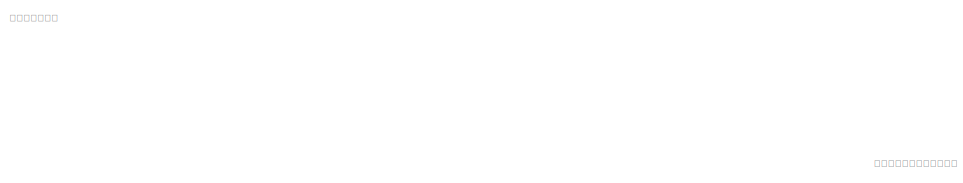
[diagram: root canvas - part 1/6, top center region]
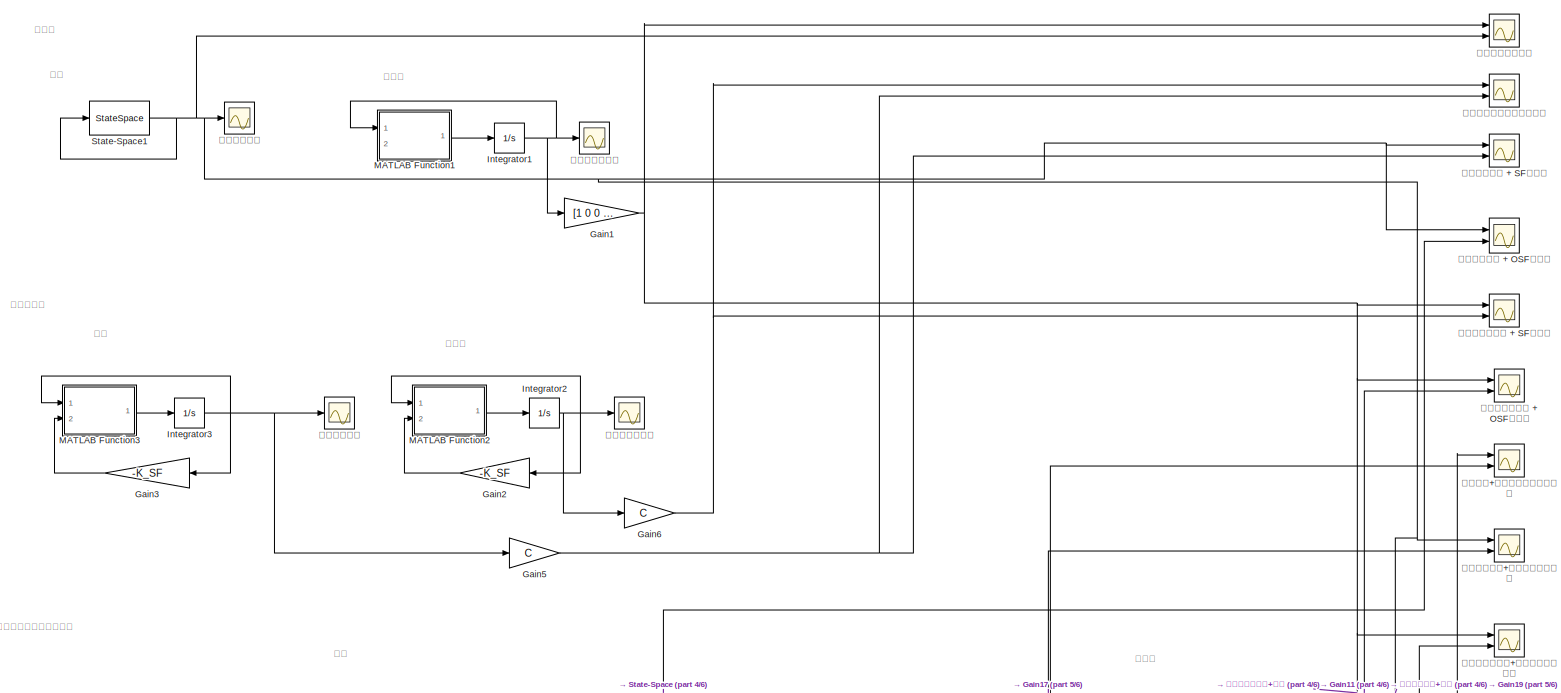
[diagram: root canvas - part 2/6, full width, top band]
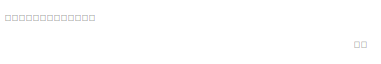
[diagram: root canvas - part 3/6, middle left region]
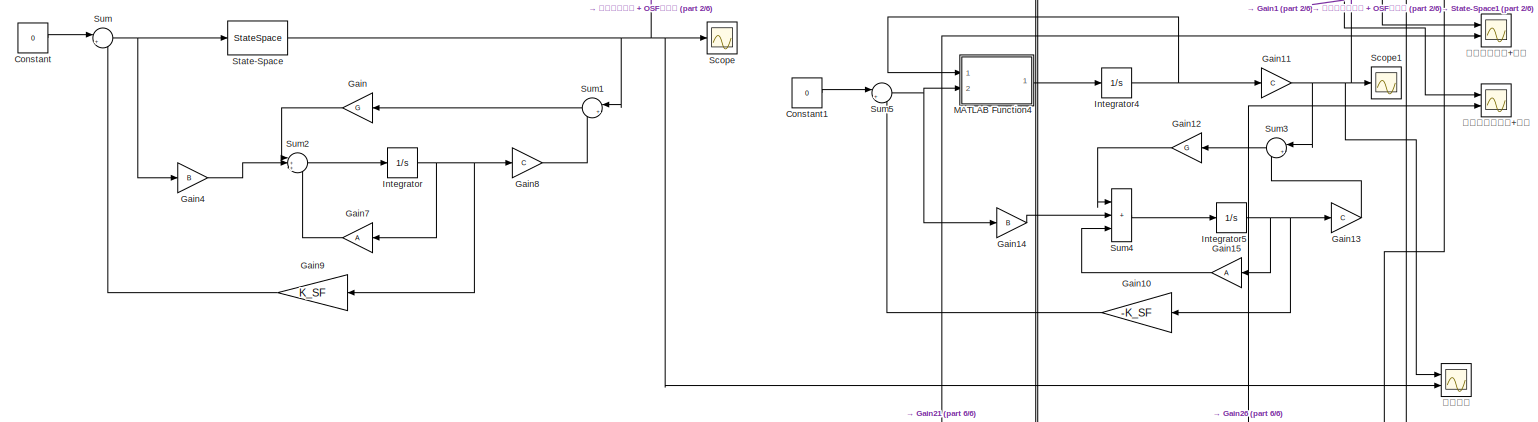
[diagram: root canvas - part 4/6, full width, middle band]
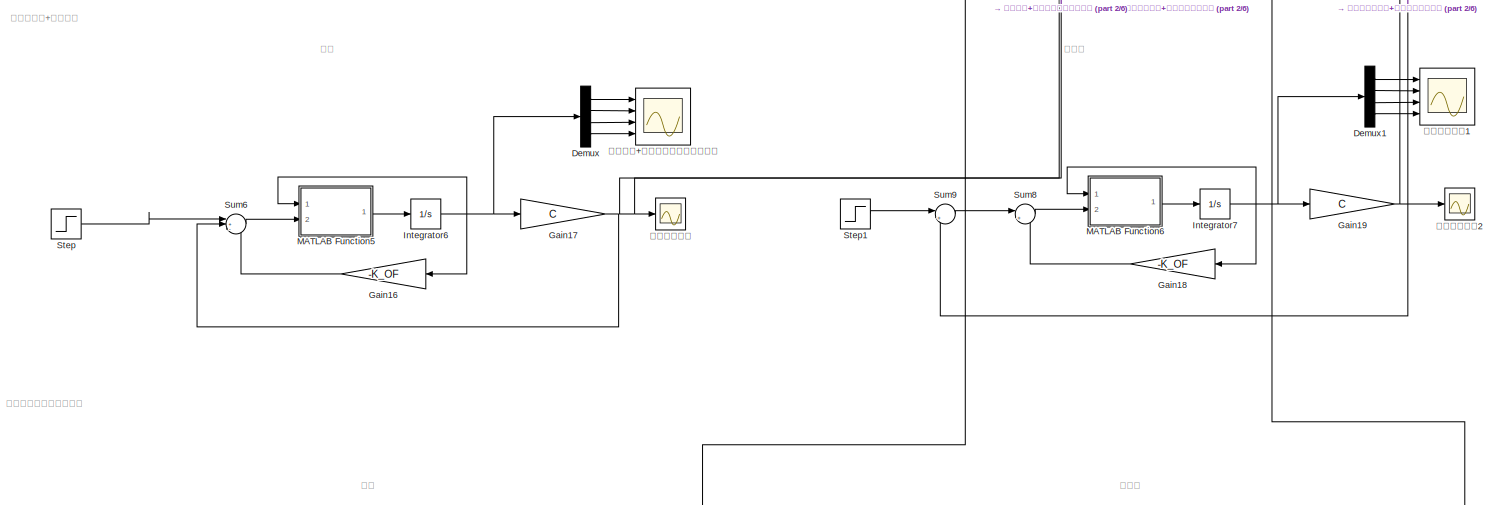
[diagram: root canvas - part 5/6, full width, bottom band]
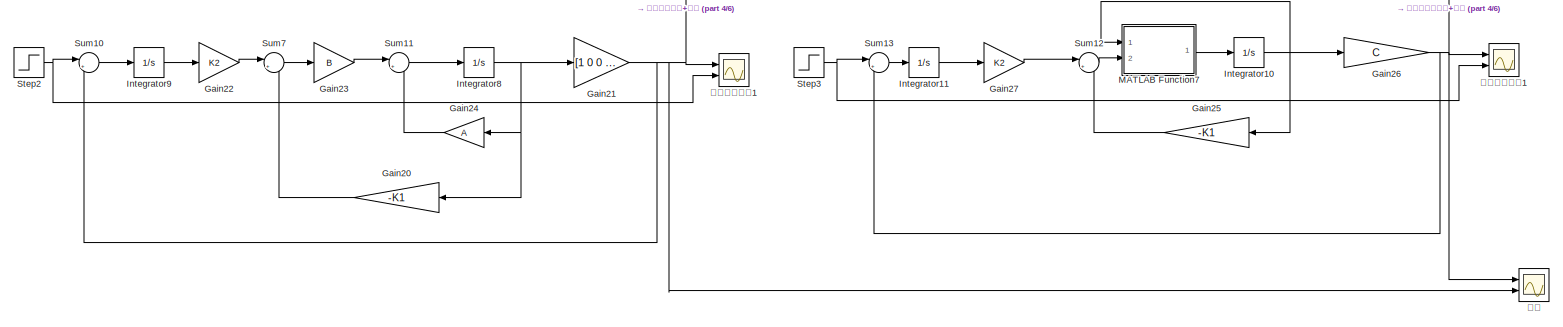
[diagram: root canvas - part 6/6, full width, bottom band]
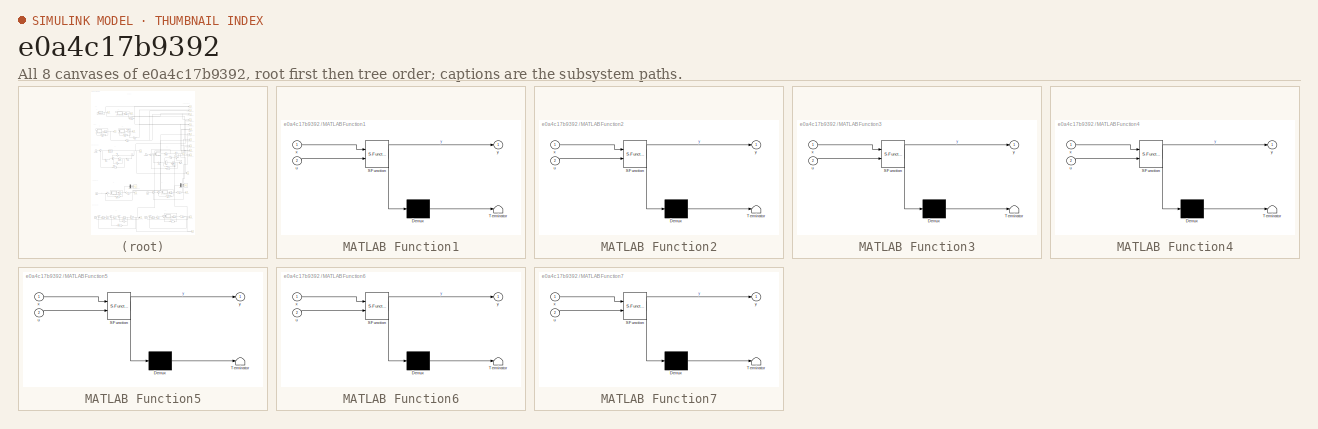
[diagram: thumbnail index - all 8 canvases of the model, root first then tree order]
MODEL slx_e0a4c17b9392
KIND model
CONFIG AbsTol = auto
CONFIG FixedStep = auto
CONFIG MaxStep = auto
CONFIG MinStep = auto
CONFIG RelTol = 1e-3
CONFIG SampleTimeConstraint = Unconstrained
CONFIG Solver = ode45
CONFIG SolverMode = SingleTasking
CONFIG SolverName = ode45
CONFIG StartTime = 0.0
CONFIG StopTime = 50
BLOCK [Constant] Constant
  Value = 0
BLOCK [Constant] Constant1
  Value = 0
BLOCK [Demux] Demux
  Ports = [1, 4]
BLOCK [Demux] Demux1
  Ports = [1, 4]
BLOCK [Gain] Gain
  Gain = G
  Multiplication = Matrix(K*u)
BLOCK [Gain] Gain1
  Gain = [1 0 0 0]
  Multiplication = Matrix(K*u)
BLOCK [Gain] Gain10
  Gain = -K_SF
  Multiplication = Matrix(K*u)
BLOCK [Gain] Gain11
  Gain = C
  Multiplication = Matrix(K*u)
BLOCK [Gain] Gain12
  Gain = G
  Multiplication = Matrix(K*u)
BLOCK [Gain] Gain13
  Gain = C
  Multiplication = Matrix(K*u)
BLOCK [Gain] Gain14
  Gain = B
  Multiplication = Matrix(K*u)
BLOCK [Gain] Gain15
  Gain = A
  Multiplication = Matrix(K*u)
BLOCK [Gain] Gain16
  Gain = -K_OF
  Multiplication = Matrix(K*u)
BLOCK [Gain] Gain17
  Gain = C
  Multiplication = Matrix(K*u)
BLOCK [Gain] Gain18
  Gain = -K_OF
  Multiplication = Matrix(K*u)
BLOCK [Gain] Gain19
  Gain = C
  Multiplication = Matrix(K*u)
BLOCK [Gain] Gain2
  Gain = -K_SF
  Multiplication = Matrix(K*u)
BLOCK [Gain] Gain20
  Gain = -K1
  Multiplication = Matrix(K*u)
BLOCK [Gain] Gain21
  Gain = [1 0 0 0]
  Multiplication = Matrix(K*u)
BLOCK [Gain] Gain22
  Gain = K2
  Multiplication = Matrix(K*u)
BLOCK [Gain] Gain23
  Gain = B
  Multiplication = Matrix(K*u)
BLOCK [Gain] Gain24
  Gain = A
  Multiplication = Matrix(K*u)
BLOCK [Gain] Gain25
  Gain = -K1
  Multiplication = Matrix(K*u)
BLOCK [Gain] Gain26
  Gain = C
  Multiplication = Matrix(K*u)
BLOCK [Gain] Gain27
  Gain = K2
  Multiplication = Matrix(K*u)
BLOCK [Gain] Gain3
  Gain = -K_SF
  Multiplication = Matrix(K*u)
BLOCK [Gain] Gain4
  Gain = B
  Multiplication = Matrix(K*u)
BLOCK [Gain] Gain5
  Gain = C
  Multiplication = Matrix(K*u)
BLOCK [Gain] Gain6
  Gain = C
  Multiplication = Matrix(K*u)
BLOCK [Gain] Gain7
  Gain = A
  Multiplication = Matrix(K*u)
BLOCK [Gain] Gain8
  Gain = C
  Multiplication = Matrix(K*u)
BLOCK [Gain] Gain9
  Gain = K_SF
  Multiplication = Matrix(K*u)
BLOCK [Integrator] Integrator
  InitialCondition = [0;0;0.1;0]
  Ports = [1, 1]
BLOCK [Integrator] Integrator1
  InitialCondition = [1,1,1,1]
  Ports = [1, 1]
BLOCK [Integrator] Integrator10
  InitialCondition = [0.1 0.1 0.1 0.1]
  Ports = [1, 1]
BLOCK [Integrator] Integrator11
  Ports = [1, 1]
BLOCK [Integrator] Integrator2
  InitialCondition = [0,0,0.3,0]
  Ports = [1, 1]
BLOCK [Integrator] Integrator3
  InitialCondition = [0;0;0.1;0]
  Ports = [1, 1]
BLOCK [Integrator] Integrator4
  InitialCondition = [0 0 0.1 0]
  Ports = [1, 1]
BLOCK [Integrator] Integrator5
  InitialCondition = [0 0 0.1 0]
  Ports = [1, 1]
BLOCK [Integrator] Integrator6
  InitialCondition = [0.1;0.1;0.1;0.1]
  Ports = [1, 1]
BLOCK [Integrator] Integrator7
  InitialCondition = [0 0 0.1 0]
  Ports = [1, 1]
BLOCK [Integrator] Integrator8
  Ports = [1, 1]
BLOCK [Integrator] Integrator9
  Ports = [1, 1]
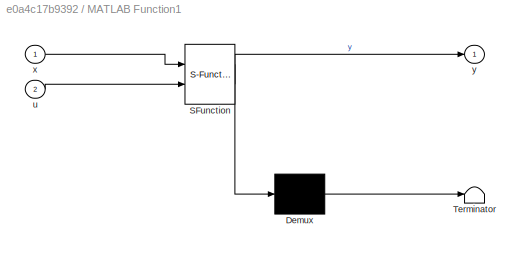
BLOCK [SubSystem] MATLAB Function1
  ErrorFcn = Stateflow.Translate.translate
  PermitHierarchicalResolution = ParametersOnly
  Ports = [2, 1]
  RequestExecContextInheritance = off
  SFBlockType = MATLAB Function
  TreatAsAtomicUnit = on
BLOCK [Demux] MATLAB Function1/ Demux 
  Outputs = 1
  Ports = [1, 1]
BLOCK [S-Function] MATLAB Function1/ SFunction 
  EnableBusSupport = on
  FunctionName = sf_sfun
  PortCounts = [2 2]
  Ports = [2, 2]
  SFunctionDeploymentMode = off
  Tag = Stateflow S-Function test1 1
BLOCK [Terminator] MATLAB Function1/ Terminator 
BLOCK [Inport] MATLAB Function1/u
  Port = 2
BLOCK [Inport] MATLAB Function1/x
BLOCK [Outport] MATLAB Function1/y
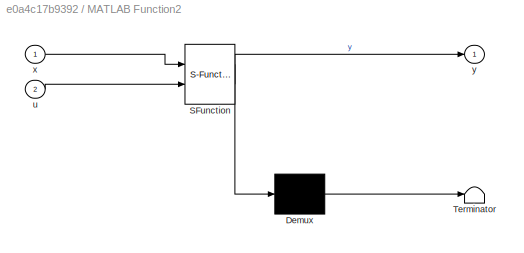
BLOCK [SubSystem] MATLAB Function2
  ErrorFcn = Stateflow.Translate.translate
  PermitHierarchicalResolution = ParametersOnly
  Ports = [2, 1]
  RequestExecContextInheritance = off
  SFBlockType = MATLAB Function
  TreatAsAtomicUnit = on
BLOCK [Demux] MATLAB Function2/ Demux 
  Outputs = 1
  Ports = [1, 1]
BLOCK [S-Function] MATLAB Function2/ SFunction 
  EnableBusSupport = on
  FunctionName = sf_sfun
  PortCounts = [2 2]
  Ports = [2, 2]
  SFunctionDeploymentMode = off
  Tag = Stateflow S-Function test1 2
BLOCK [Terminator] MATLAB Function2/ Terminator 
BLOCK [Inport] MATLAB Function2/u
  Port = 2
BLOCK [Inport] MATLAB Function2/x
BLOCK [Outport] MATLAB Function2/y
BLOCK [SubSystem] MATLAB Function3
  ErrorFcn = Stateflow.Translate.translate
  PermitHierarchicalResolution = ParametersOnly
  Ports = [2, 1]
  RequestExecContextInheritance = off
  SFBlockType = MATLAB Function
  TreatAsAtomicUnit = on
BLOCK [Demux] MATLAB Function3/ Demux 
  Outputs = 1
  Ports = [1, 1]
BLOCK [S-Function] MATLAB Function3/ SFunction 
  EnableBusSupport = on
  FunctionName = sf_sfun
  PortCounts = [2 2]
  Ports = [2, 2]
  SFunctionDeploymentMode = off
  Tag = Stateflow S-Function test1 3
BLOCK [Terminator] MATLAB Function3/ Terminator 
BLOCK [Inport] MATLAB Function3/u
  Port = 2
BLOCK [Inport] MATLAB Function3/x
BLOCK [Outport] MATLAB Function3/y
BLOCK [SubSystem] MATLAB Function4
  ErrorFcn = Stateflow.Translate.translate
  PermitHierarchicalResolution = ParametersOnly
  Ports = [2, 1]
  RequestExecContextInheritance = off
  SFBlockType = MATLAB Function
  TreatAsAtomicUnit = on
BLOCK [Demux] MATLAB Function4/ Demux 
  Outputs = 1
  Ports = [1, 1]
BLOCK [S-Function] MATLAB Function4/ SFunction 
  EnableBusSupport = on
  FunctionName = sf_sfun
  PortCounts = [2 2]
  Ports = [2, 2]
  SFunctionDeploymentMode = off
  Tag = Stateflow S-Function test1 4
BLOCK [Terminator] MATLAB Function4/ Terminator 
BLOCK [Inport] MATLAB Function4/u
  Port = 2
BLOCK [Inport] MATLAB Function4/x
BLOCK [Outport] MATLAB Function4/y
BLOCK [SubSystem] MATLAB Function5
  ErrorFcn = Stateflow.Translate.translate
  PermitHierarchicalResolution = ParametersOnly
  Ports = [2, 1]
  RequestExecContextInheritance = off
  SFBlockType = MATLAB Function
  TreatAsAtomicUnit = on
BLOCK [Demux] MATLAB Function5/ Demux 
  Outputs = 1
  Ports = [1, 1]
BLOCK [S-Function] MATLAB Function5/ SFunction 
  EnableBusSupport = on
  FunctionName = sf_sfun
  PortCounts = [2 2]
  Ports = [2, 2]
  SFunctionDeploymentMode = off
  Tag = Stateflow S-Function test1 5
BLOCK [Terminator] MATLAB Function5/ Terminator 
BLOCK [Inport] MATLAB Function5/u
  Port = 2
BLOCK [Inport] MATLAB Function5/x
BLOCK [Outport] MATLAB Function5/y
BLOCK [SubSystem] MATLAB Function6
  ErrorFcn = Stateflow.Translate.translate
  PermitHierarchicalResolution = ParametersOnly
  Ports = [2, 1]
  RequestExecContextInheritance = off
  SFBlockType = MATLAB Function
  TreatAsAtomicUnit = on
BLOCK [Demux] MATLAB Function6/ Demux 
  Outputs = 1
  Ports = [1, 1]
BLOCK [S-Function] MATLAB Function6/ SFunction 
  EnableBusSupport = on
  FunctionName = sf_sfun
  PortCounts = [2 2]
  Ports = [2, 2]
  SFunctionDeploymentMode = off
  Tag = Stateflow S-Function test1 6
BLOCK [Terminator] MATLAB Function6/ Terminator 
BLOCK [Inport] MATLAB Function6/u
  Port = 2
BLOCK [Inport] MATLAB Function6/x
BLOCK [Outport] MATLAB Function6/y
BLOCK [SubSystem] MATLAB Function7
  ErrorFcn = Stateflow.Translate.translate
  PermitHierarchicalResolution = ParametersOnly
  Ports = [2, 1]
  RequestExecContextInheritance = off
  SFBlockType = MATLAB Function
  TreatAsAtomicUnit = on
BLOCK [Demux] MATLAB Function7/ Demux 
  Outputs = 1
  Ports = [1, 1]
BLOCK [S-Function] MATLAB Function7/ SFunction 
  EnableBusSupport = on
  FunctionName = sf_sfun
  PortCounts = [2 2]
  Ports = [2, 2]
  SFunctionDeploymentMode = off
  Tag = Stateflow S-Function test1 7
BLOCK [Terminator] MATLAB Function7/ Terminator 
BLOCK [Inport] MATLAB Function7/u
  Port = 2
BLOCK [Inport] MATLAB Function7/x
BLOCK [Outport] MATLAB Function7/y
BLOCK [Scope] Scope
  DataFormat = StructureWithTime
  Decimation = 1
  Floating = off
  Grid = on
  LimitDataPoints = off
  MaxDataPoints = 5000
  NumInputPorts = 1
  Ports = [1]
  SampleInput = off
  SampleTime = -1
  SaveName = ScopeData4
  SaveToWorkspace = off
  ShowLegends = on
  TickLabels = OneTimeTick
  TimeRange = auto
  YMax = 0.59546
  YMin = -0.06616
  ZoomMode = on
BLOCK [Scope] Scope1
  DataFormat = StructureWithTime
  Decimation = 1
  Floating = off
  Grid = on
  LimitDataPoints = off
  MaxDataPoints = 5000
  NumInputPorts = 1
  Ports = [1]
  SampleInput = off
  SampleTime = -1
  SaveName = ScopeData5
  SaveToWorkspace = off
  ShowLegends = on
  TickLabels = OneTimeTick
  TimeRange = auto
  YMax = 0.60197
  YMin = -0.06692
  ZoomMode = on
BLOCK [StateSpace] State-Space
  A = A
  B = B
  C = C
  D = D
  Ports = [1, 1]
  X0 = [0;0;0.1;0]
BLOCK [StateSpace] State-Space1
  A = [0 1 0 0;0 0 -1 0;0 0 0 1;0 0 22 0]
  B = [0;1;0;-2]
  C = [1 0 0 0]
  D = [0]
  Ports = [1, 1]
  X0 = 1
BLOCK [Step] Step
  SampleTime = 0
BLOCK [Step] Step1
  SampleTime = 0
BLOCK [Step] Step2
  SampleTime = 0
BLOCK [Step] Step3
  SampleTime = 0
BLOCK [Sum] Sum
  Inputs = |+-
  Ports = [2, 1]
BLOCK [Sum] Sum1
  Inputs = |+-
  Ports = [2, 1]
BLOCK [Sum] Sum10
  Inputs = |+-
  Ports = [2, 1]
BLOCK [Sum] Sum11
  Inputs = |++
  Ports = [2, 1]
BLOCK [Sum] Sum12
  Inputs = |++
  Ports = [2, 1]
BLOCK [Sum] Sum13
  Inputs = |+-
  Ports = [2, 1]
BLOCK [Sum] Sum2
  Inputs = |+++
  Ports = [3, 1]
BLOCK [Sum] Sum3
  Inputs = |+-
  Ports = [2, 1]
BLOCK [Sum] Sum4
  IconShape = rectangular
  Inputs = |+++
  Ports = [3, 1]
BLOCK [Sum] Sum5
  Inputs = |++
  Ports = [2, 1]
BLOCK [Sum] Sum6
  Inputs = |+-+
  Ports = [3, 1]
BLOCK [Sum] Sum7
  Inputs = |++
  Ports = [2, 1]
BLOCK [Sum] Sum8
  Inputs = |++
  Ports = [2, 1]
BLOCK [Sum] Sum9
  Inputs = |+-
  Ports = [2, 1]
BLOCK [Scope] 原始非线性系统 
  DataFormat = StructureWithTime
  Decimation = 1
  Floating = off
  Grid = on
  LimitDataPoints = off
  MaxDataPoints = 5000
  NumInputPorts = 1
  Ports = [1]
  SampleInput = off
  SampleTime = -1
  SaveName = ScopeData3
  SaveToWorkspace = off
  ShowLegends = off
  TickLabels = OneTimeTick
  TimeRange = auto
  YMax = 9.04986
  YMin = -2.24151
  ZoomMode = on
BLOCK [Scope] 原始非线性系统 + OSF控制器
  DataFormat = StructureWithTime
  Decimation = 1
  Floating = off
  Grid = on
  LimitDataPoints = off
  MaxDataPoints = 5000
  NumInputPorts = 2
  Ports = [2]
  SampleInput = off
  SampleTime = -1
  SaveName = ScopeData10
  SaveToWorkspace = off
  ShowLegends = on
  TickLabels = OneTimeTick
  TimeRange = auto
  YMax = 61.37957~0.60184
  YMin = -5.70884~-0.06691
  ZoomMode = on
BLOCK [Scope] 原始非线性系统 + SF控制器
  DataFormat = StructureWithTime
  Decimation = 1
  Floating = off
  Grid = on
  LimitDataPoints = off
  MaxDataPoints = 5000
  NumInputPorts = 2
  Ports = [2]
  SampleInput = off
  SampleTime = -1
  SaveName = ScopeData9
  SaveToWorkspace = off
  ShowLegends = on
  TickLabels = OneTimeTick
  TimeRange = auto
  YMax = 61.37957~1.83173
  YMin = -5.70884~-0.22645
  ZoomMode = on
BLOCK [Scope] 原始非线性系统+状态输出反馈比较
  DataFormat = StructureWithTime
  Decimation = 1
  Floating = off
  Grid = on
  LimitDataPoints = off
  MaxDataPoints = 5000
  NumInputPorts = 2
  Ports = [2]
  SampleInput = off
  SampleTime = -1
  SaveName = ScopeData17
  SaveToWorkspace = off
  ShowLegends = on
  TickLabels = OneTimeTick
  TimeRange = auto
  YMax = 61.37957~0.2083
  YMin = -5.70884~-0.2719
  ZoomMode = on
BLOCK [Scope] 原始非线性系统+积分
  DataFormat = StructureWithTime
  Decimation = 1
  Floating = off
  Grid = on
  LimitDataPoints = off
  MaxDataPoints = 5000
  NumInputPorts = 2
  Ports = [2]
  SampleInput = off
  SampleTime = -1
  SaveName = ScopeData22
  SaveToWorkspace = on
  ShowLegends = on
  TickLabels = OneTimeTick
  TimeRange = auto
  YMax = 62.35734~1.21224
  YMin = -5.81748~-0.3525
  ZoomMode = on
BLOCK [Scope] 响应比较
  DataFormat = StructureWithTime
  Decimation = 1
  Floating = off
  Grid = on
  LimitDataPoints = off
  MaxDataPoints = 5000
  NumInputPorts = 2
  Ports = [2]
  SampleInput = off
  SampleTime = -1
  SaveName = ScopeData6
  SaveToWorkspace = off
  ShowLegends = on
  TickLabels = OneTimeTick
  TimeRange = auto
  YMax = 0.60184~0.59505
  YMin = -0.06691~-0.06612
  ZoomMode = on
BLOCK [Scope] 开环输出响应比较
  DataFormat = StructureWithTime
  Decimation = 1
  Floating = off
  Grid = on
  LimitDataPoints = off
  MaxDataPoints = 5000
  NumInputPorts = 2
  Ports = [2]
  SampleInput = off
  SampleTime = -1
  SaveName = ScopeData4
  SaveToWorkspace = on
  ShowLegends = on
  TickLabels = OneTimeTick
  TimeRange = auto
  YMax = 61.37957~3819713225455066638107157978807660167821796549519740613958717658852698355546752598154734509418872832.00000
  YMin = -5.70884~-34377419029095608970641659881482028377840226357392472077060944427337011146029719643187965309510221824.00000
  ZoomMode = on
BLOCK [Scope] 比较
  DataFormat = StructureWithTime
  Decimation = 1
  Floating = off
  Grid = on
  LimitDataPoints = off
  MaxDataPoints = 5000
  NumInputPorts = 2
  Ports = [2]
  SampleInput = off
  SampleTime = -1
  SaveName = ScopeData20
  SaveToWorkspace = on
  ShowLegends = on
  TickLabels = OneTimeTick
  TimeRange = auto
  YMax = 1.38767~1.38767
  YMin = -0.44699~-0.44699
  ZoomMode = on
BLOCK [Scope] 状态反馈+输出反馈的状态响应曲线
  DataFormat = StructureWithTime
  Decimation = 1
  Floating = off
  Grid = on
  LimitDataPoints = off
  MaxDataPoints = 5000
  NumInputPorts = 4
  Ports = [4]
  SampleInput = off
  SampleTime = -1
  SaveName = ScopeData13
  SaveToWorkspace = on
  ShowLegends = on
  TickLabels = OneTimeTick
  TimeRange = auto
  YMax = 0.40493~0.6926~0.12444~0.25546
  YMin = -0.30317~-0.55497~-0.11586~-0.63266
  ZoomMode = on
BLOCK [Scope] 状态反馈+输出反馈输出响应比较
  DataFormat = StructureWithTime
  Decimation = 1
  Floating = off
  Grid = on
  LimitDataPoints = off
  MaxDataPoints = 5000
  NumInputPorts = 2
  Ports = [2]
  SampleInput = off
  SampleTime = -1
  SaveName = ScopeData15
  SaveToWorkspace = off
  ShowLegends = on
  TickLabels = OneTimeTick
  TimeRange = auto
  YMax = 0.2083~0.40493
  YMin = -0.2719~-0.30317
  ZoomMode = on
BLOCK [Scope] 状态反馈输出响应特性比较
  DataFormat = StructureWithTime
  Decimation = 1
  Floating = off
  Grid = on
  LimitDataPoints = off
  MaxDataPoints = 5000
  NumInputPorts = 2
  Ports = [2]
  SampleInput = off
  SampleTime = -1
  SaveName = ScopeData1
  SaveToWorkspace = on
  ShowLegends = on
  TickLabels = OneTimeTick
  TimeRange = auto
  YMax = 1.83214~0.5954
  YMin = -0.22648~-0.06616
  ZoomMode = on
BLOCK [Scope] 状态响应曲线1
  DataFormat = StructureWithTime
  Decimation = 1
  Floating = off
  Grid = on
  LimitDataPoints = off
  MaxDataPoints = 5000
  NumInputPorts = 4
  Ports = [4]
  SampleInput = off
  SampleTime = -1
  SaveName = ScopeData14
  SaveToWorkspace = on
  ShowLegends = on
  TickLabels = OneTimeTick
  TimeRange = auto
  YMax = 0.20836~0.43292~0.11854~0.15007
  YMin = -0.27136~-0.39416~-0.06684~-0.45067
  ZoomMode = on
BLOCK [Scope] 简化线性系统
  DataFormat = StructureWithTime
  Decimation = 1
  Floating = off
  Grid = on
  LimitDataPoints = off
  MaxDataPoints = 5000
  NumInputPorts = 1
  Ports = [1]
  SampleInput = off
  SampleTime = -1
  SaveName = ScopeData2
  SaveToWorkspace = off
  ShowLegends = on
  TickLabels = OneTimeTick
  TimeRange = auto
  YMax = 3820462378339550642038513369464201369027216824666347526679478734413191023758498129679805715377553408.00000
  YMin = -34384161405055965491691081453823166918554485539591660952149503870416325472888531861639677464440471552.00000
  ZoomMode = on
BLOCK [Scope] 简化线性系统 + OSF控制器
  DataFormat = StructureWithTime
  Decimation = 1
  Floating = off
  Grid = on
  LimitDataPoints = off
  MaxDataPoints = 5000
  NumInputPorts = 2
  Ports = [2]
  SampleInput = off
  SampleTime = -1
  SaveName = ScopeData8
  SaveToWorkspace = off
  ShowLegends = on
  TickLabels = OneTimeTick
  TimeRange = auto
  YMax = 3819713225455066638107157978807660167821796549519740613958717658852698355546752598154734509418872832.00000~0.59505
  YMin = -34377419029095608970641659881482028377840226357392472077060944427337011146029719643187965309510221824.00000~-0.06612
  ZoomMode = on
BLOCK [Scope] 简化线性系统 + SF控制器
  DataFormat = StructureWithTime
  Decimation = 1
  Floating = off
  Grid = on
  LimitDataPoints = off
  MaxDataPoints = 5000
  NumInputPorts = 2
  Ports = [2]
  SampleInput = off
  SampleTime = -1
  SaveName = ScopeData7
  SaveToWorkspace = off
  ShowLegends = on
  TickLabels = OneTimeTick
  TimeRange = auto
  YMax = 3819713225455066638107157978807660167821796549519740613958717658852698355546752598154734509418872832.00000~0.59505
  YMin = -34377419029095608970641659881482028377840226357392472077060944427337011146029719643187965309510221824.00000~-0.06612
  ZoomMode = on
BLOCK [Scope] 简化线性系统+状态输出反馈比较
  DataFormat = StructureWithTime
  Decimation = 1
  Floating = off
  Grid = on
  LimitDataPoints = off
  MaxDataPoints = 5000
  NumInputPorts = 2
  Ports = [2]
  SampleInput = off
  SampleTime = -1
  SaveName = ScopeData16
  SaveToWorkspace = off
  ShowLegends = on
  TickLabels = OneTimeTick
  TimeRange = auto
  YMax = 3819713225455066638107157978807660167821796549519740613958717658852698355546752598154734509418872832.00000~0.40493
  YMin = -34377419029095608970641659881482028377840226357392472077060944427337011146029719643187965309510221824.00000~-0.30317
  ZoomMode = on
BLOCK [Scope] 简化线性系统+积分
  DataFormat = StructureWithTime
  Decimation = 1
  Floating = off
  Grid = on
  LimitDataPoints = off
  MaxDataPoints = 5000
  NumInputPorts = 2
  Ports = [2]
  SampleInput = off
  SampleTime = -1
  SaveName = ScopeData21
  SaveToWorkspace = on
  ShowLegends = on
  TickLabels = OneTimeTick
  TimeRange = auto
  YMax = 3820462378339550642038513369464201369027216824666347526679478734413191023758498129679805715377553408.00000~1.18353
  YMin = -34384161405055965491691081453823166918554485539591660952149503870416325472888531861639677464440471552.00000~-0.18895
  ZoomMode = on
BLOCK [Scope] 线性状态曲线
  DataFormat = StructureWithTime
  Decimation = 1
  Floating = off
  Grid = on
  LimitDataPoints = off
  MaxDataPoints = 5000
  NumInputPorts = 1
  Ports = [1]
  SampleInput = off
  SampleTime = -1
  SaveName = ScopeData3
  SaveToWorkspace = on
  ShowLegends = off
  TickLabels = OneTimeTick
  TimeRange = auto
  YMax = 0.62507
  YMin = -0.3363
  ZoomMode = on
BLOCK [Scope] 线性状态曲线1
  DataFormat = StructureWithTime
  Decimation = 1
  Floating = off
  Grid = on
  LimitDataPoints = off
  MaxDataPoints = 5000
  NumInputPorts = 2
  Ports = [2]
  SampleInput = off
  SampleTime = -1
  SaveName = ScopeData18
  SaveToWorkspace = on
  ShowLegends = off
  TickLabels = OneTimeTick
  TimeRange = auto
  YMax = 1.38767~5
  YMin = -0.44699~-5
  ZoomMode = on
BLOCK [Scope] 线性状态曲线2
  DataFormat = StructureWithTime
  Decimation = 1
  Floating = off
  Grid = on
  LimitDataPoints = off
  MaxDataPoints = 5000
  NumInputPorts = 1
  Ports = [1]
  SampleInput = off
  SampleTime = -1
  SaveName = ScopeData12
  SaveToWorkspace = on
  ShowLegends = off
  TickLabels = OneTimeTick
  TimeRange = auto
  YMax = 3862.2887
  YMin = -6169.89092
  ZoomMode = on
BLOCK [Scope] 输出响应曲线
  DataFormat = StructureWithTime
  Decimation = 1
  Floating = off
  Grid = on
  LimitDataPoints = off
  MaxDataPoints = 5000
  NumInputPorts = 1
  Ports = [1]
  SampleInput = off
  SampleTime = -1
  SaveName = ScopeData11
  SaveToWorkspace = on
  ShowLegends = off
  TickLabels = OneTimeTick
  TimeRange = auto
  YMax = 0.40555
  YMin = -0.30281
  ZoomMode = on
BLOCK [Scope] 输出响应曲线1
  DataFormat = StructureWithTime
  Decimation = 1
  Floating = off
  Grid = on
  LimitDataPoints = off
  MaxDataPoints = 5000
  NumInputPorts = 2
  Ports = [2]
  SampleInput = off
  SampleTime = -1
  SaveName = ScopeData19
  SaveToWorkspace = on
  ShowLegends = off
  TickLabels = OneTimeTick
  TimeRange = auto
  YMax = 1.31723~5
  YMin = -0.20186~-5
  ZoomMode = on
BLOCK [Scope] 非线性状态曲线
  DataFormat = StructureWithTime
  Decimation = 1
  Floating = off
  Grid = on
  LimitDataPoints = off
  MaxDataPoints = 5000
  NumInputPorts = 1
  Ports = [1]
  SampleInput = off
  SampleTime = -1
  SaveName = ScopeData2
  SaveToWorkspace = on
  ShowLegends = off
  TickLabels = OneTimeTick
  TimeRange = auto
  YMax = 1.90088
  YMin = -0.96496
  ZoomMode = on
ANNOTATION (root): 各类控制策略和原系统比较
ANNOTATION (root): 线性
ANNOTATION (root): 非线性
ANNOTATION (root): ①开环
ANNOTATION (root): ②状态反馈
ANNOTATION (root): ③基于状态观测器的状态反馈
ANNOTATION (root): ④状态反馈+输出反馈
ANNOTATION (root): ⑤带积分矫正的控制策略
ANNOTATION (root): 单级倒立摆系统
LINE Constant1:1 -> Sum5:1
LINE Constant:1 -> Sum:1
LINE Demux1:1 -> 状态响应曲线1:1
LINE Demux1:2 -> 状态响应曲线1:2
LINE Demux1:3 -> 状态响应曲线1:3
LINE Demux1:4 -> 状态响应曲线1:4
LINE Demux:1 -> 状态反馈+输出反馈的状态响应曲线:1
LINE Demux:2 -> 状态反馈+输出反馈的状态响应曲线:2
LINE Demux:3 -> 状态反馈+输出反馈的状态响应曲线:3
LINE Demux:4 -> 状态反馈+输出反馈的状态响应曲线:4
LINE Gain10:1 -> Sum5:2
NET Gain11:1 -> Scope1:1, Sum3:1, 原始非线性系统 + OSF控制器:2, 响应比较:1
LINE Gain12:1 -> Sum4:1
LINE Gain13:1 -> Sum3:2
LINE Gain14:1 -> Sum4:2
LINE Gain15:1 -> Sum4:3
LINE Gain16:1 -> Sum6:3
NET Gain17:1 -> Sum6:2, 状态反馈+输出反馈输出响应比较:2, 简化线性系统+状态输出反馈比较:2, 输出响应曲线:1
LINE Gain18:1 -> Sum8:2
NET Gain19:1 -> Sum9:2, 原始非线性系统+状态输出反馈比较:2, 状态反馈+输出反馈输出响应比较:1, 线性状态曲线2:1
NET Gain1:1 -> 原始非线性系统 + OSF控制器:1, 原始非线性系统 + SF控制器:1, 原始非线性系统+状态输出反馈比较:1, 原始非线性系统+积分:1, 开环输出响应比较:1
LINE Gain20:1 -> Sum7:2
NET Gain21:1 -> Sum10:2, 比较:2, 简化线性系统+积分:2, 输出响应曲线1:1
LINE Gain22:1 -> Sum7:1
LINE Gain23:1 -> Sum11:1
LINE Gain24:1 -> Sum11:2
LINE Gain25:1 -> Sum12:2
NET Gain26:1 -> Sum13:2, 原始非线性系统+积分:2, 比较:1, 线性状态曲线1:1
LINE Gain27:1 -> Sum12:1
LINE Gain2:1 -> MATLAB Function2:2
LINE Gain3:1 -> MATLAB Function3:2
LINE Gain4:1 -> Sum2:2
NET Gain5:1 -> 状态反馈输出响应特性比较:2, 简化线性系统 + SF控制器:2
NET Gain6:1 -> 原始非线性系统 + SF控制器:2, 状态反馈输出响应特性比较:1
LINE Gain7:1 -> Sum2:3
LINE Gain8:1 -> Sum1:2
LINE Gain9:1 -> Sum:2
LINE Gain:1 -> Sum2:1
NET Integrator10:1 -> Gain25:1, Gain26:1, MATLAB Function7:1
LINE Integrator11:1 -> Gain27:1
NET Integrator1:1 -> Gain1:1, MATLAB Function1:1, 原始非线性系统 :1
NET Integrator2:1 -> Gain2:1, Gain6:1, MATLAB Function2:1, 非线性状态曲线:1
NET Integrator3:1 -> Gain3:1, Gain5:1, MATLAB Function3:1, 线性状态曲线:1
NET Integrator4:1 -> Gain11:1, MATLAB Function4:1
NET Integrator5:1 -> Gain10:1, Gain13:1, Gain15:1
NET Integrator6:1 -> Demux:1, Gain16:1, Gain17:1, MATLAB Function5:1
NET Integrator7:1 -> Demux1:1, Gain18:1, Gain19:1, MATLAB Function6:1
NET Integrator8:1 -> Gain20:1, Gain21:1, Gain24:1
LINE Integrator9:1 -> Gain22:1
NET Integrator:1 -> Gain7:1, Gain8:1, Gain9:1
LINE MATLAB Function1:1 -> Integrator1:1
LINE MATLAB Function2:1 -> Integrator2:1
LINE MATLAB Function3:1 -> Integrator3:1
LINE MATLAB Function4:1 -> Integrator4:1
LINE MATLAB Function5:1 -> Integrator6:1
LINE MATLAB Function6:1 -> Integrator7:1
LINE MATLAB Function7:1 -> Integrator10:1
NET State-Space1:1 -> State-Space1:1, 开环输出响应比较:2, 简化线性系统 + OSF控制器:1, 简化线性系统 + SF控制器:1, 简化线性系统+状态输出反馈比较:1, 简化线性系统+积分:1, 简化线性系统:1
NET State-Space:1 -> Scope:1, Sum1:1, 响应比较:2, 简化线性系统 + OSF控制器:2
LINE Step1:1 -> Sum9:1
NET Step2:1 -> Sum10:1, 输出响应曲线1:2
NET Step3:1 -> Sum13:1, 线性状态曲线1:2
LINE Step:1 -> Sum6:1
LINE Sum10:1 -> Integrator9:1
LINE Sum11:1 -> Integrator8:1
LINE Sum12:1 -> MATLAB Function7:2
LINE Sum13:1 -> Integrator11:1
LINE Sum1:1 -> Gain:1
LINE Sum2:1 -> Integrator:1
LINE Sum3:1 -> Gain12:1
LINE Sum4:1 -> Integrator5:1
NET Sum5:1 -> Gain14:1, MATLAB Function4:2
LINE Sum6:1 -> MATLAB Function5:2
LINE Sum7:1 -> Gain23:1
LINE Sum8:1 -> MATLAB Function6:2
LINE Sum9:1 -> Sum8:1
NET Sum:1 -> Gain4:1, State-Space:1
note: NET lines group one-source signal fan-out (src -> all destinations, sorted); 1:1 wires keep LINE
CHART MATLAB Function1 states=1 transitions=1
  STATE_LABEL 'eML_blk_kernel()'
  STATE_LABEL 'SCRIPT:\nfunction y = fcn(x,u)\n\nM = 1;\nm = 0.1;\nl = 0.5;\ng = 9.8;\n\ndx1 = x(2);\ndx2 = (u+m*l*sin(x(3)*x(4)*x(4))-m*g*cos(x(3))*sin(x(3)))/(M + m - m*cos(x(3))*cos(x(3)));\ndx3 = x(4);\ndx4 = (u*cos(x(3))-(M+m)*g*sin(x(3))+m*l*sin(x(3))*cos(x(3)*x(4)*x(4)))/(m*l*cos(x(3))*cos(x(3))-(M+m)*l);\ny = [dx1;dx2;dx3;dx4];\n'
CHART MATLAB Function2 states=1 transitions=1
  STATE_LABEL 'eML_blk_kernel()'
  STATE_LABEL 'SCRIPT:\nfunction y = fcn(x,u)\nM = 1;\nm = 0.1;\nl = 0.5;\ng = 9.8;\nx1=x(1);\nx2=x(2);\nx3=x(3);\nx4=x(4);\n\ndx1 = x2;\ndx2 =(u + m*l*x4*x4*sin(x3) - m*g*sin(x3)*cos(x3))/(M + m - m*cos(x3)*cos(x3));\ndx3 = x4;\ndx4 =(-u*cos(x3) + (M+m)*g*sin(x3) - m*l*x4*x4*sin(x3)*cos(x3))/((M+m)*l - m*l*cos(x3)*cos(x3));\ny = [dx1;dx2;dx3;dx4];'  <repeated x3 — deduplicated; at blocks: MATLAB Function2, MATLAB Function6, MATLAB Function7>
CHART MATLAB Function3 states=1 transitions=1
  STATE_LABEL 'eML_blk_kernel()'
  STATE_LABEL 'SCRIPT:\nfunction y = fcn(x,u)\n\ndx1 = x(2);\ndx2 = -x(3)+u;\ndx3 = x(4);\ndx4 = 22*x(3)-2*u;\n\ny = [dx1;dx2;dx3;dx4];\n'
CHART MATLAB Function4 states=1 transitions=1
  STATE_LABEL 'eML_blk_kernel()'
  STATE_LABEL 'SCRIPT:\nfunction y = fcn(x,u)\nM = 1;\nm = 0.1;\nl = 0.5;\ng = 9.8;\nx1=x(1);\nx2=x(2);\nx3=x(3);\nx4=x(4);\n\ndx1 = x2;\ndx2 =(u + m*l*x4*x4*sin(x3) - m*g*sin(x3)*cos(x3))/(M + m - m*cos(x3)*cos(x3));\ndx3 = x4;\ndx4 =(-u*cos(x3) + (M+m)*g*sin(x3) - m*l*x4*x4*sin(x3)*cos(x3))/((M+m)*l - m*l*cos(x3)*cos(x3));\ny = [dx1;dx2;dx3;dx4];\n\n'
CHART MATLAB Function5 states=1 transitions=1
  STATE_LABEL 'eML_blk_kernel()'
  STATE_LABEL 'SCRIPT:\nfunction y = fcn(x,u)\n\ndx1 = x(2);\ndx2 = -x(3)+u;\ndx3 = x(4);\ndx4 = 22*x(3)-2*u;\n\ny = [dx1;dx2;dx3;dx4];\n'
CHART MATLAB Function6 states=1 transitions=1
  STATE_LABEL 'eML_blk_kernel()'
CHART MATLAB Function7 states=1 transitions=1
  STATE_LABEL 'eML_blk_kernel()'
